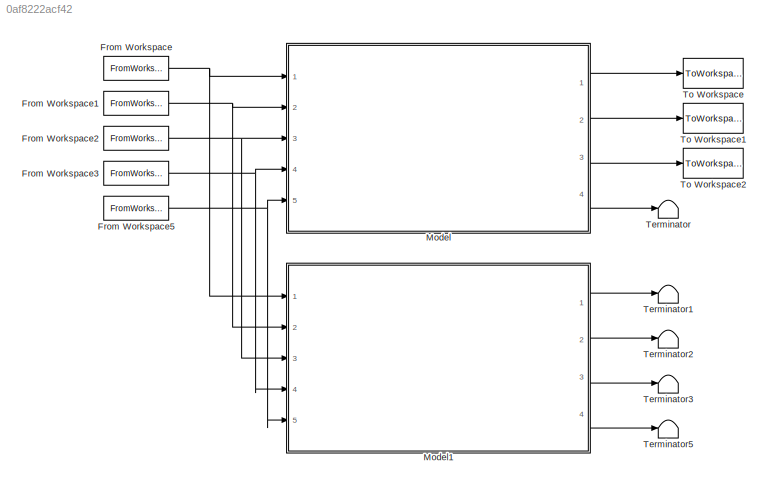
MODEL slx_0af8222acf42
KIND model
CONFIG AbsTol = auto
CONFIG EnableMultiTasking = off
CONFIG FixedStep = dt
CONFIG MaxStep = auto
CONFIG MinStep = auto
CONFIG RelTol = 1e-3
CONFIG SampleTimeConstraint = Unconstrained
CONFIG Solver = FixedStepAuto
CONFIG SolverName = FixedStepAuto
CONFIG StartTime = 0.0
CONFIG StopTime = 10
BLOCK [FromWorkspace] From Workspace
  Commented = on
  SampleTime = dt
  VariableName = Vb_ip
  ZeroCross = on
BLOCK [FromWorkspace] From Workspace1
  Commented = on
  SampleTime = dt
  VariableName = Wb_ip
  ZeroCross = on
BLOCK [FromWorkspace] From Workspace2
  Commented = on
  SampleTime = dt
  VariableName = Ax_ip
  ZeroCross = on
BLOCK [FromWorkspace] From Workspace3
  Commented = on
  SampleTime = dt
  VariableName = Ns_ip
  ZeroCross = on
BLOCK [FromWorkspace] From Workspace5
  Commented = on
  SampleTime = dt
  VariableName = Pro_ip
  ZeroCross = on
BLOCK [ModelReference] Model
  ModelNameDialog = PF70mmDuctFanP.slx
  ModelReferenceVersion = 1.37
  Ports = [5, 4]
BLOCK [ModelReference] Model1
  ModelNameDialog = PF70mmDuctFanP.slx
  ModelReferenceVersion = 1.37
  Ports = [5, 4]
BLOCK [Terminator] Terminator
BLOCK [Terminator] Terminator1
BLOCK [Terminator] Terminator2
BLOCK [Terminator] Terminator3
BLOCK [Terminator] Terminator5
BLOCK [ToWorkspace] To Workspace
  FixptAsFi = on
  MaxDataPoints = inf
  Ports = [1]
  SampleTime = -1
  Save2DSignal = 3-D array (concatenate along third dimension)
  SaveFormat = Timeseries
  VariableName = Sim_Fb
BLOCK [ToWorkspace] To Workspace1
  FixptAsFi = on
  MaxDataPoints = inf
  Ports = [1]
  SampleTime = -1
  Save2DSignal = 3-D array (concatenate along third dimension)
  SaveFormat = Timeseries
  VariableName = Sim_Mb
BLOCK [ToWorkspace] To Workspace2
  FixptAsFi = on
  MaxDataPoints = inf
  Ports = [1]
  SampleTime = -1
  Save2DSignal = 3-D array (concatenate along third dimension)
  SaveFormat = Timeseries
  VariableName = Sim_Tq
NET From Workspace1:1 -> Model1:2, Model:2
NET From Workspace2:1 -> Model1:3, Model:3
NET From Workspace3:1 -> Model1:4, Model:4
NET From Workspace5:1 -> Model1:5, Model:5
NET From Workspace:1 -> Model1:1, Model:1
LINE Model1:1 -> Terminator1:1
LINE Model1:2 -> Terminator2:1
LINE Model1:3 -> Terminator3:1
LINE Model1:4 -> Terminator5:1
LINE Model:1 -> To Workspace:1
LINE Model:2 -> To Workspace1:1
LINE Model:3 -> To Workspace2:1
LINE Model:4 -> Terminator:1
note: NET lines group one-source signal fan-out (src -> all destinations, sorted); 1:1 wires keep LINE
